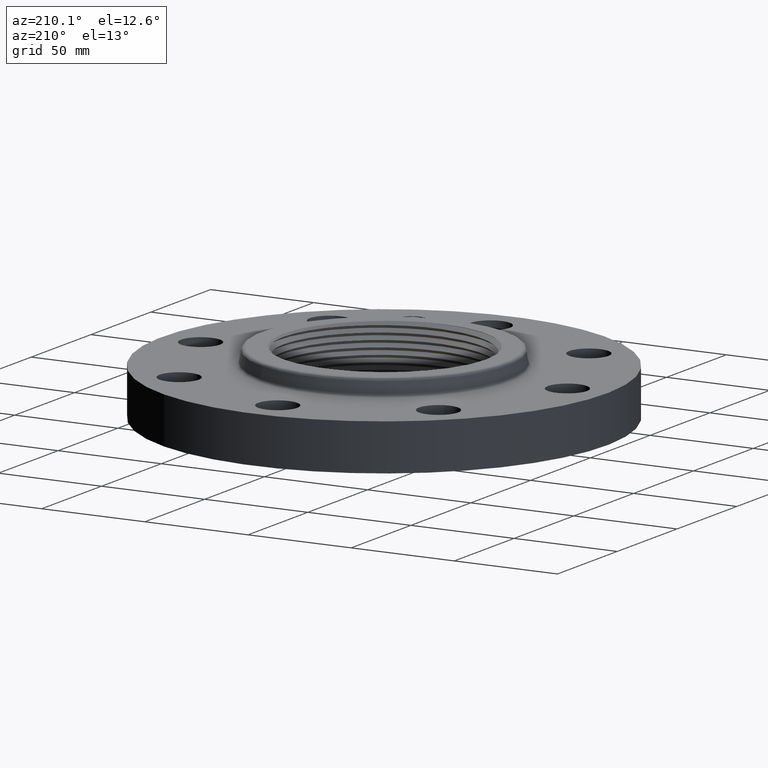
[diagram: clean part render]
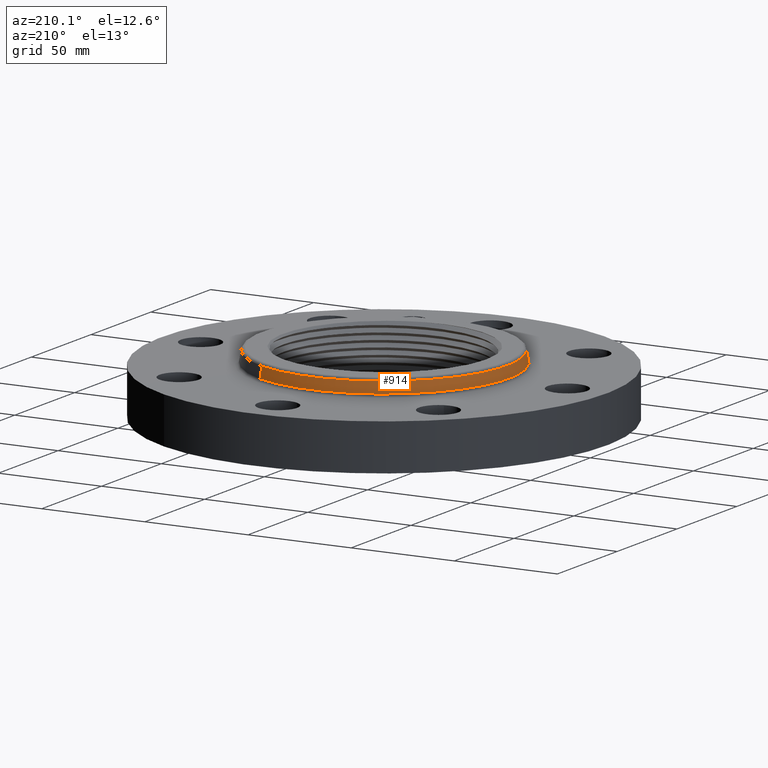
[diagram: same view with one face highlighted and labeled with its STEP entity id]
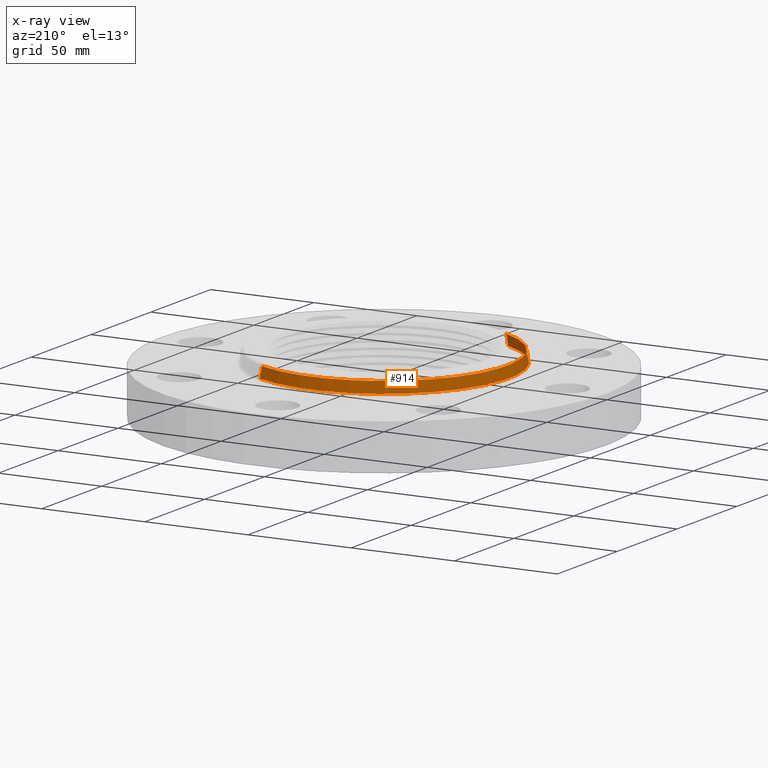
[diagram: x-ray of the same camera — body ghosted, the highlighted face saturated]
A machine part, auxiliary view. The second image highlights one B-rep face of the part: STEP entity #914.
The next image is the same camera in x-ray: the body ghosted, the highlighted face saturated — about 0% of this face is hidden behind the body in this view.
In plain terms, the highlighted conical surface has half-angle 10 deg.
Its self-contained STEP definition (entity closure, byte-faithful):
#848=AXIS2_PLACEMENT_3D('Circle Axis2P3D',#846,#847,$) ;
#887=AXIS2_PLACEMENT_3D('Cone Axis2P3D',#884,#885,#886) ;
#891=AXIS2_PLACEMENT_3D('Circle Axis2P3D',#889,#890,$) ;
#846=CARTESIAN_POINT('Axis2P3D Location',(0.,0.,1.14041889066)) ;
#850=CARTESIAN_POINT('Vertex',(-1.13100373815,-2.07028845589,1.14041889066)) ;
#852=CARTESIAN_POINT('Vertex',(1.13100373815,2.07028845589,1.14041889066)) ;
#884=CARTESIAN_POINT('Axis2P3D Location',(0.,0.,1.14041889066)) ;
#889=CARTESIAN_POINT('Axis2P3D Location',(0.,0.,0.929581109344)) ;
#893=CARTESIAN_POINT('Vertex',(-1.14882704866,-2.10291380694,0.929581109344)) ;
#895=CARTESIAN_POINT('Vertex',(1.14882704866,2.10291380694,0.929581109344)) ;
#898=CARTESIAN_POINT('Line Origine',(-1.1399153934,-2.08660113142,1.035)) ;
#903=CARTESIAN_POINT('Line Origine',(1.1399153934,2.08660113142,1.035)) ;
#847=DIRECTION('Axis2P3D Direction',(0.,0.,-0.0393700787402)) ;
#885=DIRECTION('Axis2P3D Direction',(0.,0.,-0.0393700787402)) ;
#886=DIRECTION('Axis2P3D XDirection',(0.0188750212049,0.0345504945626,0.)) ;
#890=DIRECTION('Axis2P3D Direction',(0.,0.,-0.0393700787402)) ;
#899=DIRECTION('Vector Direction',(-0.00327761303565,-0.00599963041829,-0.03877195878)) ;
#904=DIRECTION('Vector Direction',(0.00327761303565,0.00599963041829,-0.03877195878)) ;
#900=VECTOR('Line Direction',#899,0.0393700787402) ;
#905=VECTOR('Line Direction',#904,0.0393700787402) ;
#909=ORIENTED_EDGE('',*,*,#897,.F.) ;
#910=ORIENTED_EDGE('',*,*,#902,.T.) ;
#911=ORIENTED_EDGE('',*,*,#854,.T.) ;
#912=ORIENTED_EDGE('',*,*,#907,.F.) ;
#914=ADVANCED_FACE('PartBody',(#913),#888,.T.) ;
#849=CIRCLE('generated circle',#848,2.3590811233) ;
#892=CIRCLE('generated circle',#891,2.3962575127) ;
#888=CONICAL_SURFACE('Cone',#887,2.3590811233,0.174532925199) ;
#854=EDGE_CURVE('',#851,#853,#849,.T.) ;
#897=EDGE_CURVE('',#894,#896,#892,.T.) ;
#902=EDGE_CURVE('',#894,#851,#901,.F.) ;
#907=EDGE_CURVE('',#896,#853,#906,.F.) ;
#908=EDGE_LOOP('',(#909,#910,#911,#912)) ;
#913=FACE_OUTER_BOUND('',#908,.T.) ;
#901=LINE('Line',#898,#900) ;
#906=LINE('Line',#903,#905) ;
#851=VERTEX_POINT('',#850) ;
#853=VERTEX_POINT('',#852) ;
#894=VERTEX_POINT('',#893) ;
#896=VERTEX_POINT('',#895) ;